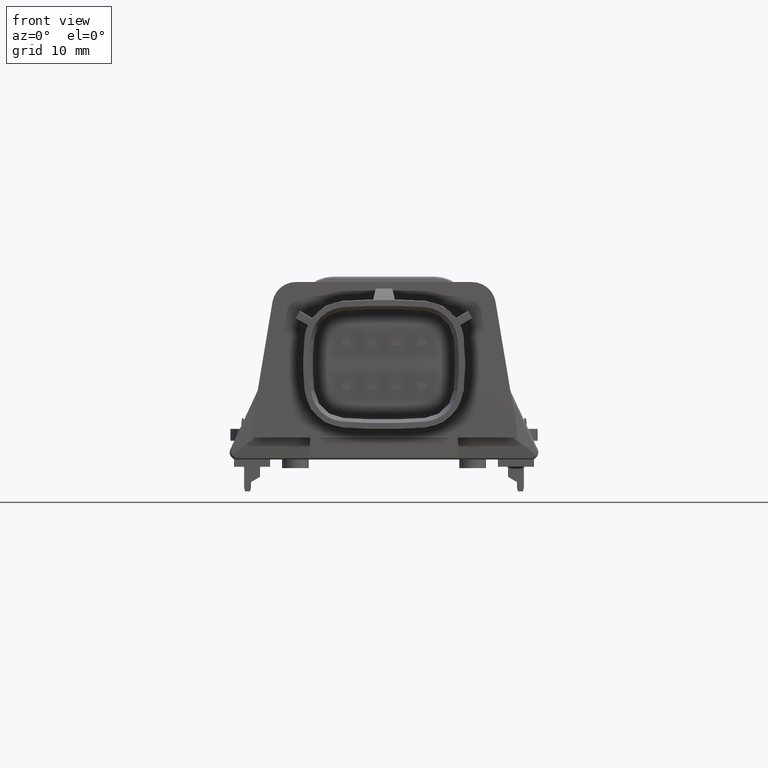
[diagram: clean part render]
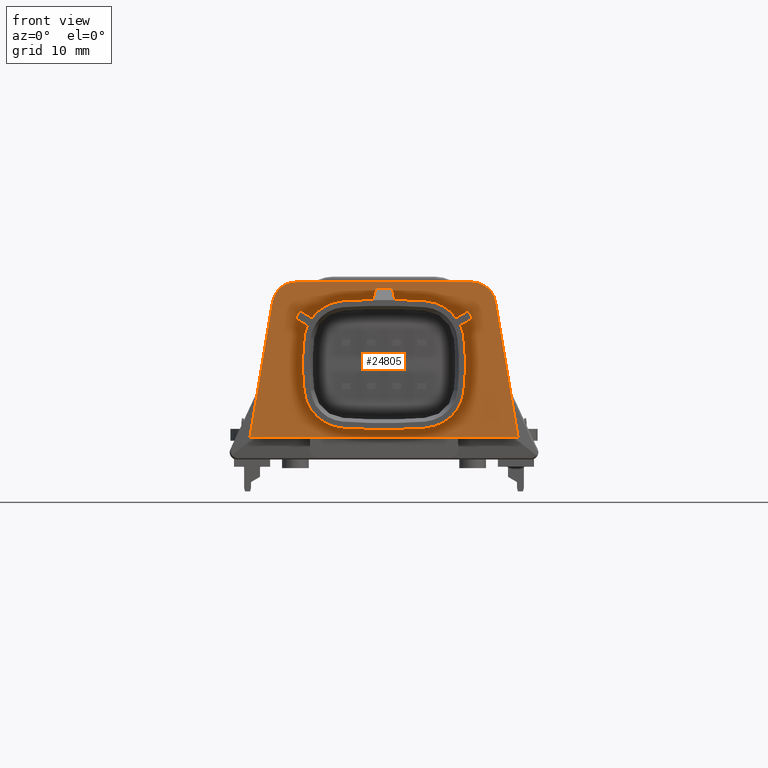
[diagram: same view with one face highlighted and labeled with its STEP entity id]
A machine part, front view. The second image highlights one B-rep face of the part: STEP entity #24805.
In plain terms, the highlighted planar face has unit normal (0, 1, 0).
Its self-contained STEP definition (entity closure, byte-faithful):
#8640 = VERTEX_POINT('',#8641);
#8641 = CARTESIAN_POINT('',(13.22051866713,20.30277740553,11.675));
#8648 = CONICAL_SURFACE('',#8649,5.7167217,4.3633231E-003);
#8649 = AXIS2_PLACEMENT_3D('',#8650,#8651,#8652);
#8650 = CARTESIAN_POINT('',(12.79530848084,14.553302746,22.77999950532)
  );
#8651 = DIRECTION('',(-0.E+000,0.E+000,-1.));
#8652 = DIRECTION('',(-1.,0.E+000,0.E+000));
#8682 = CONICAL_SURFACE('',#8683,77.8204981,4.3633231E-003);
#8683 = AXIS2_PLACEMENT_3D('',#8684,#8685,#8686);
#8684 = CARTESIAN_POINT('',(7.477299736717,-57.35409152467,
    22.77999950532));
#8685 = DIRECTION('',(-0.E+000,0.E+000,-1.));
#8686 = DIRECTION('',(-1.,0.E+000,0.E+000));
#8768 = VERTEX_POINT('',#8769);
#8769 = CARTESIAN_POINT('',(17.45005308274,17.95486345459,11.675));
#8808 = PLANE('',#8809);
#8809 = AXIS2_PLACEMENT_3D('',#8810,#8811,#8812);
#8810 = CARTESIAN_POINT('',(19.15862980087,18.82940863345,33.88499901064
    ));
#8811 = DIRECTION('',(-0.49999524036,0.866017159847,4.363309284747E-003)
  );
#8812 = DIRECTION('',(8.726369367997E-003,5.558653716356E-019,
    0.999961924514));
#8823 = EDGE_CURVE('',#8640,#8768,#8824,.T.);
#8824 = SURFACE_CURVE('',#8825,(#8830,#8859),.PCURVE_S1.);
#8825 = CIRCLE('',#8826,5.7651767);
#8826 = AXIS2_PLACEMENT_3D('',#8827,#8828,#8829);
#8827 = CARTESIAN_POINT('',(12.79530848085,14.55330274601,11.67500000001
    ));
#8828 = DIRECTION('',(0.E+000,0.E+000,-1.));
#8829 = DIRECTION('',(7.375492673846E-002,0.997276396383,0.E+000));
#8830 = PCURVE('',#8648,#8831);
#8831 = DEFINITIONAL_REPRESENTATION('',(#8832),#8858);
#8832 = B_SPLINE_CURVE_WITH_KNOTS('',3,(#8833,#8834,#8835,#8836,#8837,
    #8838,#8839,#8840,#8841,#8842,#8843,#8844,#8845,#8846,#8847,#8848,
    #8849,#8850,#8851,#8852,#8853,#8854,#8855,#8856,#8857),
  .UNSPECIFIED.,.F.,.F.,(4,1,1,1,1,1,1,1,1,1,1,1,1,1,1,1,1,1,1,1,1,1,4),
  (0.E+000,3.935875719803E-002,7.871751439606E-002,0.118076271594,
    0.157435028792,0.19679378599,0.236152543188,0.275511300386,
    0.314870057584,0.354228814782,0.39358757198,0.432946329178,
    0.472305086376,0.511663843574,0.551022600772,0.59038135797,
    0.629740115168,0.669098872367,0.708457629565,0.747816386763,
    0.787175143961,0.826533901159,0.865892658357),
  .QUASI_UNIFORM_KNOTS.);
#8833 = CARTESIAN_POINT('',(1.644618286297,11.104999505274));
#8834 = CARTESIAN_POINT('',(1.65773787203,11.104999505274));
#8835 = CARTESIAN_POINT('',(1.683977043495,11.104999505274));
#8836 = CARTESIAN_POINT('',(1.723335800693,11.104999505274));
#8837 = CARTESIAN_POINT('',(1.762694557891,11.104999505274));
#8838 = CARTESIAN_POINT('',(1.802053315089,11.104999505274));
#8839 = CARTESIAN_POINT('',(1.841412072287,11.104999505274));
#8840 = CARTESIAN_POINT('',(1.880770829485,11.104999505274));
#8841 = CARTESIAN_POINT('',(1.920129586683,11.104999505274));
#8842 = CARTESIAN_POINT('',(1.959488343881,11.104999505274));
#8843 = CARTESIAN_POINT('',(1.998847101079,11.104999505274));
#8844 = CARTESIAN_POINT('',(2.038205858277,11.104999505274));
#8845 = CARTESIAN_POINT('',(2.077564615475,11.104999505274));
#8846 = CARTESIAN_POINT('',(2.116923372673,11.104999505274));
#8847 = CARTESIAN_POINT('',(2.156282129871,11.104999505274));
#8848 = CARTESIAN_POINT('',(2.195640887069,11.104999505274));
#8849 = CARTESIAN_POINT('',(2.234999644266,11.104999505274));
#8850 = CARTESIAN_POINT('',(2.274358401464,11.104999505274));
#8851 = CARTESIAN_POINT('',(2.313717158662,11.104999505274));
#8852 = CARTESIAN_POINT('',(2.35307591586,11.104999505274));
#8853 = CARTESIAN_POINT('',(2.392434673058,11.104999505274));
#8854 = CARTESIAN_POINT('',(2.431793430256,11.104999505274));
#8855 = CARTESIAN_POINT('',(2.471152187454,11.104999505274));
#8856 = CARTESIAN_POINT('',(2.497391358919,11.104999505274));
#8857 = CARTESIAN_POINT('',(2.510510944652,11.104999505274));
#8858 = ( GEOMETRIC_REPRESENTATION_CONTEXT(2) 
PARAMETRIC_REPRESENTATION_CONTEXT() REPRESENTATION_CONTEXT('2D SPACE',''
  ) );
#8859 = PCURVE('',#8860,#8865);
#8860 = PLANE('',#8861);
#8861 = AXIS2_PLACEMENT_3D('',#8862,#8863,#8864);
#8862 = CARTESIAN_POINT('',(36.91875616118,-8.181083939232,11.675));
#8863 = DIRECTION('',(0.E+000,0.E+000,-1.));
#8864 = DIRECTION('',(0.E+000,-1.,0.E+000));
#8865 = DEFINITIONAL_REPRESENTATION('',(#8866),#8870);
#8866 = CIRCLE('',#8867,5.7651767);
#8867 = AXIS2_PLACEMENT_2D('',#8868,#8869);
#8868 = CARTESIAN_POINT('',(-22.73438668524,24.12344768033));
#8869 = DIRECTION('',(-0.997276396383,-7.375492673846E-002));
#8870 = ( GEOMETRIC_REPRESENTATION_CONTEXT(2) 
PARAMETRIC_REPRESENTATION_CONTEXT() REPRESENTATION_CONTEXT('2D SPACE',''
  ) );
#9633 = EDGE_CURVE('',#9634,#8640,#9636,.T.);
#9634 = VERTEX_POINT('',#9635);
#9635 = CARTESIAN_POINT('',(1.734080806298,20.30277740553,11.675));
#9636 = SURFACE_CURVE('',#9637,(#9642,#9671),.PCURVE_S1.);
#9637 = CIRCLE('',#9638,77.8689531);
#9638 = AXIS2_PLACEMENT_3D('',#9639,#9640,#9641);
#9639 = CARTESIAN_POINT('',(7.477299736726,-57.35409152468,
    11.67500000001));
#9640 = DIRECTION('',(0.E+000,0.E+000,-1.));
#9641 = DIRECTION('',(-7.375492673703E-002,0.997276396383,0.E+000));
#9642 = PCURVE('',#8682,#9643);
#9643 = DEFINITIONAL_REPRESENTATION('',(#9644),#9670);
#9644 = B_SPLINE_CURVE_WITH_KNOTS('',3,(#9645,#9646,#9647,#9648,#9649,
    #9650,#9651,#9652,#9653,#9654,#9655,#9656,#9657,#9658,#9659,#9660,
    #9661,#9662,#9663,#9664,#9665,#9666,#9667,#9668,#9669),
  .UNSPECIFIED.,.F.,.F.,(4,1,1,1,1,1,1,1,1,1,1,1,1,1,1,1,1,1,1,1,1,1,4),
  (0.E+000,6.711087227204E-003,1.342217445441E-002,2.013326168161E-002,
    2.684434890882E-002,3.355543613602E-002,4.026652336322E-002,
    4.697761059043E-002,5.368869781763E-002,6.039978504484E-002,
    6.711087227204E-002,7.382195949925E-002,8.053304672645E-002,
    8.724413395365E-002,9.395522118086E-002,0.100666308408,
    0.107377395635,0.114088482862,0.12079957009,0.127510657317,
    0.134221744544,0.140932831771,0.147643918998),
  .QUASI_UNIFORM_KNOTS.);
#9645 = CARTESIAN_POINT('',(1.496974367296,11.104999505273));
#9646 = CARTESIAN_POINT('',(1.499211396371,11.104999505273));
#9647 = CARTESIAN_POINT('',(1.503685454523,11.104999505273));
#9648 = CARTESIAN_POINT('',(1.51039654175,11.104999505273));
#9649 = CARTESIAN_POINT('',(1.517107628977,11.104999505273));
#9650 = CARTESIAN_POINT('',(1.523818716204,11.104999505273));
#9651 = CARTESIAN_POINT('',(1.530529803432,11.104999505273));
#9652 = CARTESIAN_POINT('',(1.537240890659,11.104999505273));
#9653 = CARTESIAN_POINT('',(1.543951977886,11.104999505273));
#9654 = CARTESIAN_POINT('',(1.550663065113,11.104999505273));
#9655 = CARTESIAN_POINT('',(1.55737415234,11.104999505273));
#9656 = CARTESIAN_POINT('',(1.564085239568,11.104999505273));
#9657 = CARTESIAN_POINT('',(1.570796326795,11.104999505273));
#9658 = CARTESIAN_POINT('',(1.577507414022,11.104999505273));
#9659 = CARTESIAN_POINT('',(1.584218501249,11.104999505273));
#9660 = CARTESIAN_POINT('',(1.590929588476,11.104999505273));
#9661 = CARTESIAN_POINT('',(1.597640675704,11.104999505273));
#9662 = CARTESIAN_POINT('',(1.604351762931,11.104999505273));
#9663 = CARTESIAN_POINT('',(1.611062850158,11.104999505273));
#9664 = CARTESIAN_POINT('',(1.617773937385,11.104999505273));
#9665 = CARTESIAN_POINT('',(1.624485024612,11.104999505273));
#9666 = CARTESIAN_POINT('',(1.63119611184,11.104999505273));
#9667 = CARTESIAN_POINT('',(1.637907199067,11.104999505273));
#9668 = CARTESIAN_POINT('',(1.642381257218,11.104999505273));
#9669 = CARTESIAN_POINT('',(1.644618286294,11.104999505273));
#9670 = ( GEOMETRIC_REPRESENTATION_CONTEXT(2) 
PARAMETRIC_REPRESENTATION_CONTEXT() REPRESENTATION_CONTEXT('2D SPACE',''
  ) );
#9671 = PCURVE('',#8860,#9672);
#9672 = DEFINITIONAL_REPRESENTATION('',(#9673),#9677);
#9673 = CIRCLE('',#9674,77.8689531);
#9674 = AXIS2_PLACEMENT_2D('',#9675,#9676);
#9675 = CARTESIAN_POINT('',(49.173007585448,29.441456424454));
#9676 = DIRECTION('',(-0.997276396383,7.375492673703E-002));
#9677 = ( GEOMETRIC_REPRESENTATION_CONTEXT(2) 
PARAMETRIC_REPRESENTATION_CONTEXT() REPRESENTATION_CONTEXT('2D SPACE',''
  ) );
#9717 = CONICAL_SURFACE('',#9718,5.7167217,4.3633231E-003);
#9718 = AXIS2_PLACEMENT_3D('',#9719,#9720,#9721);
#9719 = CARTESIAN_POINT('',(2.159290992589,14.553302746,22.77999950532)
  );
#9720 = DIRECTION('',(-0.E+000,0.E+000,-1.));
#9721 = DIRECTION('',(-1.,0.E+000,0.E+000));
#12497 = PLANE('',#12498);
#12498 = AXIS2_PLACEMENT_3D('',#12499,#12500,#12501);
#12499 = CARTESIAN_POINT('',(-2.020586068538,17.56879650282,
    33.88499901064));
#12500 = DIRECTION('',(0.49999524036,0.866017159847,4.363309284747E-003)
  );
#12501 = DIRECTION('',(8.726369367997E-003,-5.558653716356E-019,
    -0.999961924514));
#12525 = PLANE('',#12526);
#12526 = AXIS2_PLACEMENT_3D('',#12527,#12528,#12529);
#12527 = CARTESIAN_POINT('',(-3.818048248573,19.49794920485,
    11.33078194883));
#12528 = DIRECTION('',(0.866025403784,-0.5,0.E+000));
#12529 = DIRECTION('',(0.E+000,0.E+000,-1.));
#12553 = PLANE('',#12554);
#12554 = AXIS2_PLACEMENT_3D('',#12555,#12556,#12557);
#12555 = CARTESIAN_POINT('',(-4.729030327433,17.92008195948,
    33.88499901064));
#12556 = DIRECTION('',(-0.49999524036,-0.866017159847,
    4.363309284747E-003));
#12557 = DIRECTION('',(-0.866025403784,0.5,2.336646264119E-018));
#12582 = CONICAL_SURFACE('',#12583,5.7167217,4.3633231E-003);
#12583 = AXIS2_PLACEMENT_3D('',#12584,#12585,#12586);
#12584 = CARTESIAN_POINT('',(2.159290992589,14.553302746,22.77999950532)
  );
#12585 = DIRECTION('',(-0.E+000,0.E+000,-1.));
#12586 = DIRECTION('',(-1.,0.E+000,0.E+000));
#12633 = CONICAL_SURFACE('',#12634,31.7238787,4.3633231E-003);
#12634 = AXIS2_PLACEMENT_3D('',#12635,#12636,#12637);
#12635 = CARTESIAN_POINT('',(27.98683771858,11.50206580454,
    22.77999950532));
#12636 = DIRECTION('',(-0.E+000,0.E+000,-1.));
#12637 = DIRECTION('',(-1.,0.E+000,0.E+000));
#12684 = CONICAL_SURFACE('',#12685,5.7167217,4.3633231E-003);
#12685 = AXIS2_PLACEMENT_3D('',#12686,#12687,#12688);
#12686 = CARTESIAN_POINT('',(2.159290992589,8.450828863081,
    22.77999950532));
#12687 = DIRECTION('',(-0.E+000,0.E+000,-1.));
#12688 = DIRECTION('',(-1.,0.E+000,0.E+000));
#12735 = CONICAL_SURFACE('',#12736,77.8204981,4.3633231E-003);
#12736 = AXIS2_PLACEMENT_3D('',#12737,#12738,#12739);
#12737 = CARTESIAN_POINT('',(7.477299736717,80.35822313373,
    22.77999950532));
#12738 = DIRECTION('',(-0.E+000,0.E+000,-1.));
#12739 = DIRECTION('',(-1.,0.E+000,0.E+000));
#12786 = CONICAL_SURFACE('',#12787,5.7167217,4.3633231E-003);
#12787 = AXIS2_PLACEMENT_3D('',#12788,#12789,#12790);
#12788 = CARTESIAN_POINT('',(12.79530848084,8.450828863081,
    22.77999950532));
#12789 = DIRECTION('',(-0.E+000,0.E+000,-1.));
#12790 = DIRECTION('',(-1.,0.E+000,0.E+000));
#12837 = CONICAL_SURFACE('',#12838,31.7238787,4.3633231E-003);
#12838 = AXIS2_PLACEMENT_3D('',#12839,#12840,#12841);
#12839 = CARTESIAN_POINT('',(-13.03223824514,11.50206580454,
    22.77999950532));
#12840 = DIRECTION('',(-0.E+000,0.E+000,-1.));
#12841 = DIRECTION('',(-1.,0.E+000,0.E+000));
#12888 = CONICAL_SURFACE('',#12889,5.7167217,4.3633231E-003);
#12889 = AXIS2_PLACEMENT_3D('',#12890,#12891,#12892);
#12890 = CARTESIAN_POINT('',(12.79530848084,14.553302746,22.77999950532)
  );
#12891 = DIRECTION('',(-0.E+000,0.E+000,-1.));
#12892 = DIRECTION('',(-1.,0.E+000,0.E+000));
#12938 = PLANE('',#12939);
#12939 = AXIS2_PLACEMENT_3D('',#12940,#12941,#12942);
#12940 = CARTESIAN_POINT('',(17.49088762765,16.65410167551,
    33.88499901064));
#12941 = DIRECTION('',(0.49999524036,-0.866017159847,4.363309284747E-003
    ));
#12942 = DIRECTION('',(-2.42230247091E-018,-5.03829959332E-003,
    -0.999987307688));
#12966 = PLANE('',#12967);
#12967 = AXIS2_PLACEMENT_3D('',#12968,#12969,#12970);
#12968 = CARTESIAN_POINT('',(20.06229170071,17.26422031005,
    11.33078194883));
#12969 = DIRECTION('',(-0.866025403784,-0.5,0.E+000));
#12970 = DIRECTION('',(-0.5,0.866025403784,0.E+000));
#16806 = VERTEX_POINT('',#16807);
#16807 = CARTESIAN_POINT('',(-7.951273056982,20.14236165811,11.675));
#16814 = PLANE('',#16815);
#16815 = AXIS2_PLACEMENT_3D('',#16816,#16817,#16818);
#16816 = CARTESIAN_POINT('',(-7.5,22.85,11.275));
#16817 = DIRECTION('',(-0.986393923832,0.164398987305,0.E+000));
#16818 = DIRECTION('',(0.E+000,0.E+000,1.));
#16826 = CYLINDRICAL_SURFACE('',#16827,3.3);
#16827 = AXIS2_PLACEMENT_3D('',#16828,#16829,#16830);
#16828 = CARTESIAN_POINT('',(-4.696173108336,19.599845,11.275));
#16829 = DIRECTION('',(-0.E+000,-0.E+000,1.));
#16830 = DIRECTION('',(-1.,0.E+000,0.E+000));
#16861 = VERTEX_POINT('',#16862);
#16862 = CARTESIAN_POINT('',(-11.07502583333,1.399845,11.675));
#16876 = PLANE('',#16877);
#16877 = AXIS2_PLACEMENT_3D('',#16878,#16879,#16880);
#16878 = CARTESIAN_POINT('',(-21.14700985886,1.399845,3.822859505281));
#16879 = DIRECTION('',(0.E+000,1.,0.E+000));
#16880 = DIRECTION('',(1.,0.E+000,-0.E+000));
#16888 = EDGE_CURVE('',#16806,#16861,#16889,.T.);
#16889 = SURFACE_CURVE('',#16890,(#16894,#16901),.PCURVE_S1.);
#16890 = LINE('',#16891,#16892);
#16891 = CARTESIAN_POINT('',(-7.951273056992,20.14236165812,
    11.67500000001));
#16892 = VECTOR('',#16893,1.);
#16893 = DIRECTION('',(-0.164398987306,-0.986393923832,0.E+000));
#16894 = PCURVE('',#16814,#16895);
#16895 = DEFINITIONAL_REPRESENTATION('',(#16896),#16900);
#16896 = LINE('',#16897,#16898);
#16897 = CARTESIAN_POINT('',(0.40000000001,-2.744986841933));
#16898 = VECTOR('',#16899,1.);
#16899 = DIRECTION('',(0.E+000,-1.));
#16900 = ( GEOMETRIC_REPRESENTATION_CONTEXT(2) 
PARAMETRIC_REPRESENTATION_CONTEXT() REPRESENTATION_CONTEXT('2D SPACE',''
  ) );
#16901 = PCURVE('',#8860,#16902);
#16902 = DEFINITIONAL_REPRESENTATION('',(#16903),#16907);
#16903 = LINE('',#16904,#16905);
#16904 = CARTESIAN_POINT('',(-28.32344559735,44.870029218172));
#16905 = VECTOR('',#16906,1.);
#16906 = DIRECTION('',(0.986393923832,0.164398987306));
#16907 = ( GEOMETRIC_REPRESENTATION_CONTEXT(2) 
PARAMETRIC_REPRESENTATION_CONTEXT() REPRESENTATION_CONTEXT('2D SPACE',''
  ) );
#17276 = PLANE('',#17277);
#17277 = AXIS2_PLACEMENT_3D('',#17278,#17279,#17280);
#17278 = CARTESIAN_POINT('',(16.556696,22.899845,11.275));
#17279 = DIRECTION('',(0.E+000,1.,0.E+000));
#17280 = DIRECTION('',(1.,0.E+000,-0.E+000));
#17316 = CYLINDRICAL_SURFACE('',#17317,3.3);
#17317 = AXIS2_PLACEMENT_3D('',#17318,#17319,#17320);
#17318 = CARTESIAN_POINT('',(19.65089437694,19.599845,11.275));
#17319 = DIRECTION('',(-0.E+000,-0.E+000,1.));
#17320 = DIRECTION('',(1.,0.E+000,0.E+000));
#17366 = PLANE('',#17367);
#17367 = AXIS2_PLACEMENT_3D('',#17368,#17369,#17370);
#17368 = CARTESIAN_POINT('',(22.4547212686,22.85,11.275));
#17369 = DIRECTION('',(-0.986393923832,-0.164398987305,0.E+000));
#17370 = DIRECTION('',(-0.164398987305,0.986393923832,0.E+000));
#23539 = VERTEX_POINT('',#23540);
#23540 = CARTESIAN_POINT('',(1.734080806298,2.70135420355,11.675));
#23607 = VERTEX_POINT('',#23608);
#23608 = CARTESIAN_POINT('',(-3.566070331575,7.774441199908,11.675));
#23673 = EDGE_CURVE('',#23539,#23607,#23674,.T.);
#23674 = SURFACE_CURVE('',#23675,(#23680,#23709),.PCURVE_S1.);
#23675 = CIRCLE('',#23676,5.7651767);
#23676 = AXIS2_PLACEMENT_3D('',#23677,#23678,#23679);
#23677 = CARTESIAN_POINT('',(2.159290992599,8.450828863091,
    11.67500000001));
#23678 = DIRECTION('',(-0.E+000,0.E+000,-1.));
#23679 = DIRECTION('',(-7.37549267387E-002,-0.997276396383,0.E+000));
#23680 = PCURVE('',#12684,#23681);
#23681 = DEFINITIONAL_REPRESENTATION('',(#23682),#23708);
#23682 = B_SPLINE_CURVE_WITH_KNOTS('',3,(#23683,#23684,#23685,#23686,
    #23687,#23688,#23689,#23690,#23691,#23692,#23693,#23694,#23695,
    #23696,#23697,#23698,#23699,#23700,#23701,#23702,#23703,#23704,
    #23705,#23706,#23707),.UNSPECIFIED.,.F.,.F.,(4,1,1,1,1,1,1,1,1,1,1,1
    ,1,1,1,1,1,1,1,1,1,1,4),(0.E+000,6.269911648721E-002,0.125398232974,
    0.188097349462,0.250796465949,0.313495582436,0.376194698923,
    0.43889381541,0.501592931898,0.564292048385,0.626991164872,
    0.689690281359,0.752389397847,0.815088514334,0.877787630821,
    0.940486747308,1.003185863795,1.065884980283,1.12858409677,
    1.191283213257,1.253982329744,1.316681446231,1.379380562719),
  .QUASI_UNIFORM_KNOTS.);
#23683 = CARTESIAN_POINT('',(4.786210939884,11.104999505273));
#23684 = CARTESIAN_POINT('',(4.80711064538,11.104999505273));
#23685 = CARTESIAN_POINT('',(4.848910056371,11.104999505273));
#23686 = CARTESIAN_POINT('',(4.911609172859,11.104999505273));
#23687 = CARTESIAN_POINT('',(4.974308289346,11.104999505273));
#23688 = CARTESIAN_POINT('',(5.037007405834,11.104999505273));
#23689 = CARTESIAN_POINT('',(5.099706522321,11.104999505273));
#23690 = CARTESIAN_POINT('',(5.162405638808,11.104999505273));
#23691 = CARTESIAN_POINT('',(5.225104755296,11.104999505273));
#23692 = CARTESIAN_POINT('',(5.287803871783,11.104999505273));
#23693 = CARTESIAN_POINT('',(5.35050298827,11.104999505273));
#23694 = CARTESIAN_POINT('',(5.413202104758,11.104999505273));
#23695 = CARTESIAN_POINT('',(5.475901221245,11.104999505273));
#23696 = CARTESIAN_POINT('',(5.538600337732,11.104999505273));
#23697 = CARTESIAN_POINT('',(5.60129945422,11.104999505273));
#23698 = CARTESIAN_POINT('',(5.663998570707,11.104999505273));
#23699 = CARTESIAN_POINT('',(5.726697687194,11.104999505273));
#23700 = CARTESIAN_POINT('',(5.789396803682,11.104999505273));
#23701 = CARTESIAN_POINT('',(5.852095920169,11.104999505273));
#23702 = CARTESIAN_POINT('',(5.914795036657,11.104999505273));
#23703 = CARTESIAN_POINT('',(5.977494153144,11.104999505273));
#23704 = CARTESIAN_POINT('',(6.040193269631,11.104999505273));
#23705 = CARTESIAN_POINT('',(6.102892386119,11.104999505273));
#23706 = CARTESIAN_POINT('',(6.14469179711,11.104999505273));
#23707 = CARTESIAN_POINT('',(6.165591502606,11.104999505273));
#23708 = ( GEOMETRIC_REPRESENTATION_CONTEXT(2) 
PARAMETRIC_REPRESENTATION_CONTEXT() REPRESENTATION_CONTEXT('2D SPACE',''
  ) );
#23709 = PCURVE('',#8860,#23710);
#23710 = DEFINITIONAL_REPRESENTATION('',(#23711),#23715);
#23711 = CIRCLE('',#23712,5.7651767);
#23712 = AXIS2_PLACEMENT_2D('',#23713,#23714);
#23713 = CARTESIAN_POINT('',(-16.63191280232,34.759465168581));
#23714 = DIRECTION('',(0.997276396383,7.37549267387E-002));
#23715 = ( GEOMETRIC_REPRESENTATION_CONTEXT(2) 
PARAMETRIC_REPRESENTATION_CONTEXT() REPRESENTATION_CONTEXT('2D SPACE',''
  ) );
#23723 = VERTEX_POINT('',#23724);
#23724 = CARTESIAN_POINT('',(-3.566070331575,15.22969040917,11.675));
#23789 = EDGE_CURVE('',#23607,#23723,#23790,.T.);
#23790 = SURFACE_CURVE('',#23791,(#23796,#23825),.PCURVE_S1.);
#23791 = CIRCLE('',#23792,31.7723337);
#23792 = AXIS2_PLACEMENT_3D('',#23793,#23794,#23795);
#23793 = CARTESIAN_POINT('',(27.98683771859,11.50206580455,
    11.67500000001));
#23794 = DIRECTION('',(-0.E+000,0.E+000,-1.));
#23795 = DIRECTION('',(-0.993093812473,-0.117322971442,0.E+000));
#23796 = PCURVE('',#12633,#23797);
#23797 = DEFINITIONAL_REPRESENTATION('',(#23798),#23824);
#23798 = B_SPLINE_CURVE_WITH_KNOTS('',3,(#23799,#23800,#23801,#23802,
    #23803,#23804,#23805,#23806,#23807,#23808,#23809,#23810,#23811,
    #23812,#23813,#23814,#23815,#23816,#23817,#23818,#23819,#23820,
    #23821,#23822,#23823),.UNSPECIFIED.,.F.,.F.,(4,1,1,1,1,1,1,1,1,1,1,1
    ,1,1,1,1,1,1,1,1,1,1,4),(0.E+000,1.069034587033E-002,
    2.138069174066E-002,3.207103761099E-002,4.276138348132E-002,
    5.345172935165E-002,6.414207522197E-002,7.48324210923E-002,
    8.552276696263E-002,9.621311283296E-002,0.106903458703,
    0.117593804574,0.128284150444,0.138974496314,0.149664842185,
    0.160355188055,0.171045533925,0.181735879796,0.192426225666,
    0.203116571536,0.213806917407,0.224497263277,0.235187609147),
  .QUASI_UNIFORM_KNOTS.);
#23799 = CARTESIAN_POINT('',(-0.117593804574,11.104999505273));
#23800 = CARTESIAN_POINT('',(-0.11403035595,11.104999505273));
#23801 = CARTESIAN_POINT('',(-0.106903458703,11.104999505273));
#23802 = CARTESIAN_POINT('',(-9.6213112833E-002,11.104999505273));
#23803 = CARTESIAN_POINT('',(-8.552276696267E-002,11.104999505273));
#23804 = CARTESIAN_POINT('',(-7.483242109234E-002,11.104999505273));
#23805 = CARTESIAN_POINT('',(-6.4142075222E-002,11.104999505273));
#23806 = CARTESIAN_POINT('',(-5.345172935167E-002,11.104999505273));
#23807 = CARTESIAN_POINT('',(-4.276138348134E-002,11.104999505273));
#23808 = CARTESIAN_POINT('',(-3.2071037611E-002,11.104999505273));
#23809 = CARTESIAN_POINT('',(-2.138069174067E-002,11.104999505273));
#23810 = CARTESIAN_POINT('',(-1.069034587034E-002,11.104999505273));
#23811 = CARTESIAN_POINT('',(-7.993605777301E-015,11.104999505273));
#23812 = CARTESIAN_POINT('',(1.069034587033E-002,11.104999505273));
#23813 = CARTESIAN_POINT('',(2.138069174066E-002,11.104999505273));
#23814 = CARTESIAN_POINT('',(3.207103761099E-002,11.104999505273));
#23815 = CARTESIAN_POINT('',(4.276138348132E-002,11.104999505273));
#23816 = CARTESIAN_POINT('',(5.345172935166E-002,11.104999505273));
#23817 = CARTESIAN_POINT('',(6.414207522199E-002,11.104999505273));
#23818 = CARTESIAN_POINT('',(7.483242109232E-002,11.104999505273));
#23819 = CARTESIAN_POINT('',(8.552276696265E-002,11.104999505273));
#23820 = CARTESIAN_POINT('',(9.621311283298E-002,11.104999505273));
#23821 = CARTESIAN_POINT('',(0.106903458703,11.104999505273));
#23822 = CARTESIAN_POINT('',(0.11403035595,11.104999505273));
#23823 = CARTESIAN_POINT('',(0.117593804574,11.104999505273));
#23824 = ( GEOMETRIC_REPRESENTATION_CONTEXT(2) 
PARAMETRIC_REPRESENTATION_CONTEXT() REPRESENTATION_CONTEXT('2D SPACE',''
  ) );
#23825 = PCURVE('',#8860,#23826);
#23826 = DEFINITIONAL_REPRESENTATION('',(#23827),#23831);
#23827 = CIRCLE('',#23828,31.7723337);
#23828 = AXIS2_PLACEMENT_2D('',#23829,#23830);
#23829 = CARTESIAN_POINT('',(-19.68314974378,8.93191844259));
#23830 = DIRECTION('',(0.117322971442,0.993093812473));
#23831 = ( GEOMETRIC_REPRESENTATION_CONTEXT(2) 
PARAMETRIC_REPRESENTATION_CONTEXT() REPRESENTATION_CONTEXT('2D SPACE',''
  ) );
#23837 = VERTEX_POINT('',#23838);
#23838 = CARTESIAN_POINT('',(13.22051866714,2.701354203549,11.675));
#23905 = EDGE_CURVE('',#23837,#23539,#23906,.T.);
#23906 = SURFACE_CURVE('',#23907,(#23912,#23941),.PCURVE_S1.);
#23907 = CIRCLE('',#23908,77.8689531);
#23908 = AXIS2_PLACEMENT_3D('',#23909,#23910,#23911);
#23909 = CARTESIAN_POINT('',(7.477299736727,80.35822313374,
    11.67500000001));
#23910 = DIRECTION('',(0.E+000,-0.E+000,-1.));
#23911 = DIRECTION('',(7.375492673706E-002,-0.997276396383,0.E+000));
#23912 = PCURVE('',#12735,#23913);
#23913 = DEFINITIONAL_REPRESENTATION('',(#23914),#23940);
#23914 = B_SPLINE_CURVE_WITH_KNOTS('',3,(#23915,#23916,#23917,#23918,
    #23919,#23920,#23921,#23922,#23923,#23924,#23925,#23926,#23927,
    #23928,#23929,#23930,#23931,#23932,#23933,#23934,#23935,#23936,
    #23937,#23938,#23939),.UNSPECIFIED.,.F.,.F.,(4,1,1,1,1,1,1,1,1,1,1,1
    ,1,1,1,1,1,1,1,1,1,1,4),(0.E+000,6.711087227221E-003,
    1.342217445444E-002,2.013326168166E-002,2.684434890888E-002,
    3.35554361361E-002,4.026652336333E-002,4.697761059055E-002,
    5.368869781777E-002,6.039978504499E-002,6.711087227221E-002,
    7.382195949943E-002,8.053304672665E-002,8.724413395387E-002,
    9.395522118109E-002,0.100666308408,0.107377395636,0.114088482863,
    0.12079957009,0.127510657317,0.134221744544,0.140932831772,
    0.147643918999),.QUASI_UNIFORM_KNOTS.);
#23915 = CARTESIAN_POINT('',(4.638567020885,11.104999505273));
#23916 = CARTESIAN_POINT('',(4.640804049961,11.104999505273));
#23917 = CARTESIAN_POINT('',(4.645278108112,11.104999505273));
#23918 = CARTESIAN_POINT('',(4.65198919534,11.104999505273));
#23919 = CARTESIAN_POINT('',(4.658700282567,11.104999505273));
#23920 = CARTESIAN_POINT('',(4.665411369794,11.104999505273));
#23921 = CARTESIAN_POINT('',(4.672122457021,11.104999505273));
#23922 = CARTESIAN_POINT('',(4.678833544248,11.104999505273));
#23923 = CARTESIAN_POINT('',(4.685544631476,11.104999505273));
#23924 = CARTESIAN_POINT('',(4.692255718703,11.104999505273));
#23925 = CARTESIAN_POINT('',(4.69896680593,11.104999505273));
#23926 = CARTESIAN_POINT('',(4.705677893157,11.104999505273));
#23927 = CARTESIAN_POINT('',(4.712388980385,11.104999505273));
#23928 = CARTESIAN_POINT('',(4.719100067612,11.104999505273));
#23929 = CARTESIAN_POINT('',(4.725811154839,11.104999505273));
#23930 = CARTESIAN_POINT('',(4.732522242066,11.104999505273));
#23931 = CARTESIAN_POINT('',(4.739233329293,11.104999505273));
#23932 = CARTESIAN_POINT('',(4.745944416521,11.104999505273));
#23933 = CARTESIAN_POINT('',(4.752655503748,11.104999505273));
#23934 = CARTESIAN_POINT('',(4.759366590975,11.104999505273));
#23935 = CARTESIAN_POINT('',(4.766077678202,11.104999505273));
#23936 = CARTESIAN_POINT('',(4.77278876543,11.104999505273));
#23937 = CARTESIAN_POINT('',(4.779499852657,11.104999505273));
#23938 = CARTESIAN_POINT('',(4.783973910808,11.104999505273));
#23939 = CARTESIAN_POINT('',(4.786210939884,11.104999505273));
#23940 = ( GEOMETRIC_REPRESENTATION_CONTEXT(2) 
PARAMETRIC_REPRESENTATION_CONTEXT() REPRESENTATION_CONTEXT('2D SPACE',''
  ) );
#23941 = PCURVE('',#8860,#23942);
#23942 = DEFINITIONAL_REPRESENTATION('',(#23943),#23947);
#23943 = CIRCLE('',#23944,77.8689531);
#23944 = AXIS2_PLACEMENT_2D('',#23945,#23946);
#23945 = CARTESIAN_POINT('',(-88.53930707297,29.441456424453));
#23946 = DIRECTION('',(0.997276396383,-7.375492673706E-002));
#23947 = ( GEOMETRIC_REPRESENTATION_CONTEXT(2) 
PARAMETRIC_REPRESENTATION_CONTEXT() REPRESENTATION_CONTEXT('2D SPACE',''
  ) );
#23953 = VERTEX_POINT('',#23954);
#23954 = CARTESIAN_POINT('',(18.52066980501,7.774441199908,11.675));
#24021 = EDGE_CURVE('',#23953,#23837,#24022,.T.);
#24022 = SURFACE_CURVE('',#24023,(#24028,#24057),.PCURVE_S1.);
#24023 = CIRCLE('',#24024,5.7651767);
#24024 = AXIS2_PLACEMENT_3D('',#24025,#24026,#24027);
#24025 = CARTESIAN_POINT('',(12.79530848085,8.450828863091,
    11.67500000001));
#24026 = DIRECTION('',(0.E+000,-0.E+000,-1.));
#24027 = DIRECTION('',(0.993093812473,-0.117322971444,0.E+000));
#24028 = PCURVE('',#12786,#24029);
#24029 = DEFINITIONAL_REPRESENTATION('',(#24030),#24056);
#24030 = B_SPLINE_CURVE_WITH_KNOTS('',3,(#24031,#24032,#24033,#24034,
    #24035,#24036,#24037,#24038,#24039,#24040,#24041,#24042,#24043,
    #24044,#24045,#24046,#24047,#24048,#24049,#24050,#24051,#24052,
    #24053,#24054,#24055),.UNSPECIFIED.,.F.,.F.,(4,1,1,1,1,1,1,1,1,1,1,1
    ,1,1,1,1,1,1,1,1,1,1,4),(0.E+000,6.269911648731E-002,0.125398232975,
    0.188097349462,0.250796465949,0.313495582437,0.376194698924,
    0.438893815411,0.501592931898,0.564292048386,0.626991164873,
    0.68969028136,0.752389397848,0.815088514335,0.877787630822,
    0.94048674731,1.003185863797,1.065884980284,1.128584096772,
    1.191283213259,1.253982329746,1.316681446233,1.379380562721),
  .QUASI_UNIFORM_KNOTS.);
#24031 = CARTESIAN_POINT('',(3.259186458163,11.104999505274));
#24032 = CARTESIAN_POINT('',(3.280086163659,11.104999505274));
#24033 = CARTESIAN_POINT('',(3.32188557465,11.104999505274));
#24034 = CARTESIAN_POINT('',(3.384584691137,11.104999505274));
#24035 = CARTESIAN_POINT('',(3.447283807625,11.104999505273));
#24036 = CARTESIAN_POINT('',(3.509982924112,11.104999505273));
#24037 = CARTESIAN_POINT('',(3.572682040599,11.104999505273));
#24038 = CARTESIAN_POINT('',(3.635381157086,11.104999505273));
#24039 = CARTESIAN_POINT('',(3.698080273574,11.104999505273));
#24040 = CARTESIAN_POINT('',(3.760779390061,11.104999505273));
#24041 = CARTESIAN_POINT('',(3.823478506548,11.104999505273));
#24042 = CARTESIAN_POINT('',(3.886177623036,11.104999505273));
#24043 = CARTESIAN_POINT('',(3.948876739523,11.104999505273));
#24044 = CARTESIAN_POINT('',(4.01157585601,11.104999505273));
#24045 = CARTESIAN_POINT('',(4.074274972498,11.104999505273));
#24046 = CARTESIAN_POINT('',(4.136974088985,11.104999505273));
#24047 = CARTESIAN_POINT('',(4.199673205472,11.104999505273));
#24048 = CARTESIAN_POINT('',(4.26237232196,11.104999505273));
#24049 = CARTESIAN_POINT('',(4.325071438447,11.104999505273));
#24050 = CARTESIAN_POINT('',(4.387770554934,11.104999505273));
#24051 = CARTESIAN_POINT('',(4.450469671422,11.104999505273));
#24052 = CARTESIAN_POINT('',(4.513168787909,11.104999505273));
#24053 = CARTESIAN_POINT('',(4.575867904396,11.104999505273));
#24054 = CARTESIAN_POINT('',(4.617667315388,11.104999505273));
#24055 = CARTESIAN_POINT('',(4.638567020884,11.104999505273));
#24056 = ( GEOMETRIC_REPRESENTATION_CONTEXT(2) 
PARAMETRIC_REPRESENTATION_CONTEXT() REPRESENTATION_CONTEXT('2D SPACE',''
  ) );
#24057 = PCURVE('',#8860,#24058);
#24058 = DEFINITIONAL_REPRESENTATION('',(#24059),#24063);
#24059 = CIRCLE('',#24060,5.7651767);
#24060 = AXIS2_PLACEMENT_2D('',#24061,#24062);
#24061 = CARTESIAN_POINT('',(-16.63191280232,24.12344768033));
#24062 = DIRECTION('',(0.117322971444,-0.993093812473));
#24063 = ( GEOMETRIC_REPRESENTATION_CONTEXT(2) 
PARAMETRIC_REPRESENTATION_CONTEXT() REPRESENTATION_CONTEXT('2D SPACE',''
  ) );
#24068 = EDGE_CURVE('',#24069,#23953,#24071,.T.);
#24069 = VERTEX_POINT('',#24070);
#24070 = CARTESIAN_POINT('',(18.52066980501,15.22969040917,11.675));
#24071 = SURFACE_CURVE('',#24072,(#24077,#24106),.PCURVE_S1.);
#24072 = CIRCLE('',#24073,31.7723337);
#24073 = AXIS2_PLACEMENT_3D('',#24074,#24075,#24076);
#24074 = CARTESIAN_POINT('',(-13.03223824515,11.50206580455,
    11.67500000001));
#24075 = DIRECTION('',(0.E+000,0.E+000,-1.));
#24076 = DIRECTION('',(0.993093812473,0.117322971442,0.E+000));
#24077 = PCURVE('',#12837,#24078);
#24078 = DEFINITIONAL_REPRESENTATION('',(#24079),#24105);
#24079 = B_SPLINE_CURVE_WITH_KNOTS('',3,(#24080,#24081,#24082,#24083,
    #24084,#24085,#24086,#24087,#24088,#24089,#24090,#24091,#24092,
    #24093,#24094,#24095,#24096,#24097,#24098,#24099,#24100,#24101,
    #24102,#24103,#24104),.UNSPECIFIED.,.F.,.F.,(4,1,1,1,1,1,1,1,1,1,1,1
    ,1,1,1,1,1,1,1,1,1,1,4),(0.E+000,1.069034587036E-002,
    2.138069174072E-002,3.207103761108E-002,4.276138348144E-002,
    5.345172935181E-002,6.414207522217E-002,7.483242109253E-002,
    8.552276696289E-002,9.621311283325E-002,0.106903458704,
    0.117593804574,0.128284150444,0.138974496315,0.149664842185,
    0.160355188055,0.171045533926,0.181735879796,0.192426225667,
    0.203116571537,0.213806917407,0.224497263278,0.235187609148),
  .QUASI_UNIFORM_KNOTS.);
#24080 = CARTESIAN_POINT('',(3.023998849016,11.104999505273));
#24081 = CARTESIAN_POINT('',(3.027562297639,11.104999505273));
#24082 = CARTESIAN_POINT('',(3.034689194886,11.104999505273));
#24083 = CARTESIAN_POINT('',(3.045379540756,11.104999505273));
#24084 = CARTESIAN_POINT('',(3.056069886627,11.104999505273));
#24085 = CARTESIAN_POINT('',(3.066760232497,11.104999505273));
#24086 = CARTESIAN_POINT('',(3.077450578367,11.104999505273));
#24087 = CARTESIAN_POINT('',(3.088140924238,11.104999505273));
#24088 = CARTESIAN_POINT('',(3.098831270108,11.104999505273));
#24089 = CARTESIAN_POINT('',(3.109521615978,11.104999505273));
#24090 = CARTESIAN_POINT('',(3.120211961849,11.104999505273));
#24091 = CARTESIAN_POINT('',(3.130902307719,11.104999505273));
#24092 = CARTESIAN_POINT('',(3.14159265359,11.104999505273));
#24093 = CARTESIAN_POINT('',(3.15228299946,11.104999505273));
#24094 = CARTESIAN_POINT('',(3.16297334533,11.104999505273));
#24095 = CARTESIAN_POINT('',(3.173663691201,11.104999505273));
#24096 = CARTESIAN_POINT('',(3.184354037071,11.104999505273));
#24097 = CARTESIAN_POINT('',(3.195044382941,11.104999505273));
#24098 = CARTESIAN_POINT('',(3.205734728812,11.104999505273));
#24099 = CARTESIAN_POINT('',(3.216425074682,11.104999505273));
#24100 = CARTESIAN_POINT('',(3.227115420552,11.104999505273));
#24101 = CARTESIAN_POINT('',(3.237805766423,11.104999505273));
#24102 = CARTESIAN_POINT('',(3.248496112293,11.104999505273));
#24103 = CARTESIAN_POINT('',(3.25562300954,11.104999505273));
#24104 = CARTESIAN_POINT('',(3.259186458164,11.104999505273));
#24105 = ( GEOMETRIC_REPRESENTATION_CONTEXT(2) 
PARAMETRIC_REPRESENTATION_CONTEXT() REPRESENTATION_CONTEXT('2D SPACE',''
  ) );
#24106 = PCURVE('',#8860,#24107);
#24107 = DEFINITIONAL_REPRESENTATION('',(#24108),#24112);
#24108 = CIRCLE('',#24109,31.7723337);
#24109 = AXIS2_PLACEMENT_2D('',#24110,#24111);
#24110 = CARTESIAN_POINT('',(-19.68314974378,49.95099440633));
#24111 = DIRECTION('',(-0.117322971442,-0.993093812473));
#24112 = ( GEOMETRIC_REPRESENTATION_CONTEXT(2) 
PARAMETRIC_REPRESENTATION_CONTEXT() REPRESENTATION_CONTEXT('2D SPACE',''
  ) );
#24805 = ADVANCED_FACE('',(#24806,#24930),#8860,.F.);
#24806 = FACE_BOUND('',#24807,.T.);
#24807 = EDGE_LOOP('',(#24808,#24833,#24860,#24883,#24908,#24909));
#24808 = ORIENTED_EDGE('',*,*,#24809,.T.);
#24809 = EDGE_CURVE('',#24810,#24812,#24814,.T.);
#24810 = VERTEX_POINT('',#24811);
#24811 = CARTESIAN_POINT('',(26.02974710193,1.399845,11.675));
#24812 = VERTEX_POINT('',#24813);
#24813 = CARTESIAN_POINT('',(22.90599432558,20.14236165811,11.675));
#24814 = SURFACE_CURVE('',#24815,(#24819,#24826),.PCURVE_S1.);
#24815 = LINE('',#24816,#24817);
#24816 = CARTESIAN_POINT('',(26.02974710194,1.39984500001,11.67500000001
    ));
#24817 = VECTOR('',#24818,1.);
#24818 = DIRECTION('',(-0.164398987306,0.986393923832,0.E+000));
#24819 = PCURVE('',#8860,#24820);
#24820 = DEFINITIONAL_REPRESENTATION('',(#24821),#24825);
#24821 = LINE('',#24822,#24823);
#24822 = CARTESIAN_POINT('',(-9.580928939242,10.88900905924));
#24823 = VECTOR('',#24824,1.);
#24824 = DIRECTION('',(-0.986393923832,0.164398987306));
#24825 = ( GEOMETRIC_REPRESENTATION_CONTEXT(2) 
PARAMETRIC_REPRESENTATION_CONTEXT() REPRESENTATION_CONTEXT('2D SPACE',''
  ) );
#24826 = PCURVE('',#17366,#24827);
#24827 = DEFINITIONAL_REPRESENTATION('',(#24828),#24832);
#24828 = LINE('',#24829,#24830);
#24829 = CARTESIAN_POINT('',(-21.74603318383,-0.40000000001));
#24830 = VECTOR('',#24831,1.);
#24831 = DIRECTION('',(1.,0.E+000));
#24832 = ( GEOMETRIC_REPRESENTATION_CONTEXT(2) 
PARAMETRIC_REPRESENTATION_CONTEXT() REPRESENTATION_CONTEXT('2D SPACE',''
  ) );
#24833 = ORIENTED_EDGE('',*,*,#24834,.T.);
#24834 = EDGE_CURVE('',#24812,#24835,#24837,.T.);
#24835 = VERTEX_POINT('',#24836);
#24836 = CARTESIAN_POINT('',(19.65089437694,22.899845,11.675));
#24837 = SURFACE_CURVE('',#24838,(#24843,#24854),.PCURVE_S1.);
#24838 = CIRCLE('',#24839,3.3);
#24839 = AXIS2_PLACEMENT_3D('',#24840,#24841,#24842);
#24840 = CARTESIAN_POINT('',(19.65089437695,19.59984500001,
    11.67500000001));
#24841 = DIRECTION('',(0.E+000,-0.E+000,1.));
#24842 = DIRECTION('',(0.986393923832,0.164398987308,0.E+000));
#24843 = PCURVE('',#8860,#24844);
#24844 = DEFINITIONAL_REPRESENTATION('',(#24845),#24853);
#24845 = ( BOUNDED_CURVE() B_SPLINE_CURVE(2,(#24846,#24847,#24848,#24849
    ,#24850,#24851,#24852),.UNSPECIFIED.,.F.,.F.) 
B_SPLINE_CURVE_WITH_KNOTS((1,2,2,2,2,1),(-2.094395102393,0.E+000,
    2.094395102393,4.188790204786,6.28318530718,8.377580409573),
.UNSPECIFIED.) CURVE() GEOMETRIC_REPRESENTATION_ITEM() 
RATIONAL_B_SPLINE_CURVE((1.,0.5,1.,0.5,1.,0.5,1.)) REPRESENTATION_ITEM(
  '') );
#24846 = CARTESIAN_POINT('',(-28.32344559735,14.012761835585));
#24847 = CARTESIAN_POINT('',(-33.96144409212,14.952428251395));
#24848 = CARTESIAN_POINT('',(-30.32866985756,19.365244966457));
#24849 = CARTESIAN_POINT('',(-26.69589562301,23.778061681519));
#24850 = CARTESIAN_POINT('',(-24.6906713628,18.425578550648));
#24851 = CARTESIAN_POINT('',(-22.68544710259,13.073095419776));
#24852 = CARTESIAN_POINT('',(-28.32344559735,14.012761835585));
#24853 = ( GEOMETRIC_REPRESENTATION_CONTEXT(2) 
PARAMETRIC_REPRESENTATION_CONTEXT() REPRESENTATION_CONTEXT('2D SPACE',''
  ) );
#24854 = PCURVE('',#17316,#24855);
#24855 = DEFINITIONAL_REPRESENTATION('',(#24856),#24859);
#24856 = B_SPLINE_CURVE_WITH_KNOTS('',1,(#24857,#24858),.UNSPECIFIED.,
  .F.,.F.,(2,2),(0.E+000,1.405647649375),.PIECEWISE_BEZIER_KNOTS.);
#24857 = CARTESIAN_POINT('',(0.16514867742,0.40000000001));
#24858 = CARTESIAN_POINT('',(1.570796326795,0.40000000001));
#24859 = ( GEOMETRIC_REPRESENTATION_CONTEXT(2) 
PARAMETRIC_REPRESENTATION_CONTEXT() REPRESENTATION_CONTEXT('2D SPACE',''
  ) );
#24860 = ORIENTED_EDGE('',*,*,#24861,.T.);
#24861 = EDGE_CURVE('',#24835,#24862,#24864,.T.);
#24862 = VERTEX_POINT('',#24863);
#24863 = CARTESIAN_POINT('',(-4.696173108336,22.899845,11.675));
#24864 = SURFACE_CURVE('',#24865,(#24869,#24876),.PCURVE_S1.);
#24865 = LINE('',#24866,#24867);
#24866 = CARTESIAN_POINT('',(19.65089437695,22.89984500001,
    11.67500000001));
#24867 = VECTOR('',#24868,1.);
#24868 = DIRECTION('',(-1.,0.E+000,0.E+000));
#24869 = PCURVE('',#8860,#24870);
#24870 = DEFINITIONAL_REPRESENTATION('',(#24871),#24875);
#24871 = LINE('',#24872,#24873);
#24872 = CARTESIAN_POINT('',(-31.08092893924,17.26786178423));
#24873 = VECTOR('',#24874,1.);
#24874 = DIRECTION('',(0.E+000,1.));
#24875 = ( GEOMETRIC_REPRESENTATION_CONTEXT(2) 
PARAMETRIC_REPRESENTATION_CONTEXT() REPRESENTATION_CONTEXT('2D SPACE',''
  ) );
#24876 = PCURVE('',#17276,#24877);
#24877 = DEFINITIONAL_REPRESENTATION('',(#24878),#24882);
#24878 = LINE('',#24879,#24880);
#24879 = CARTESIAN_POINT('',(3.09419837695,-0.40000000001));
#24880 = VECTOR('',#24881,1.);
#24881 = DIRECTION('',(-1.,0.E+000));
#24882 = ( GEOMETRIC_REPRESENTATION_CONTEXT(2) 
PARAMETRIC_REPRESENTATION_CONTEXT() REPRESENTATION_CONTEXT('2D SPACE',''
  ) );
#24883 = ORIENTED_EDGE('',*,*,#24884,.T.);
#24884 = EDGE_CURVE('',#24862,#16806,#24885,.T.);
#24885 = SURFACE_CURVE('',#24886,(#24891,#24902),.PCURVE_S1.);
#24886 = CIRCLE('',#24887,3.3);
#24887 = AXIS2_PLACEMENT_3D('',#24888,#24889,#24890);
#24888 = CARTESIAN_POINT('',(-4.696173108346,19.59984500001,
    11.67500000001));
#24889 = DIRECTION('',(0.E+000,-0.E+000,1.));
#24890 = DIRECTION('',(0.E+000,1.,0.E+000));
#24891 = PCURVE('',#8860,#24892);
#24892 = DEFINITIONAL_REPRESENTATION('',(#24893),#24901);
#24893 = ( BOUNDED_CURVE() B_SPLINE_CURVE(2,(#24894,#24895,#24896,#24897
    ,#24898,#24899,#24900),.UNSPECIFIED.,.T.,.F.) 
B_SPLINE_CURVE_WITH_KNOTS((1,2,2,2,2,1),(-2.094395102393,0.E+000,
    2.094395102393,4.188790204786,6.28318530718,8.377580409573),
.UNSPECIFIED.) CURVE() GEOMETRIC_REPRESENTATION_ITEM() 
RATIONAL_B_SPLINE_CURVE((1.,0.5,1.,0.5,1.,0.5,1.)) REPRESENTATION_ITEM(
  '') );
#24894 = CARTESIAN_POINT('',(-31.08092893924,41.614929269526));
#24895 = CARTESIAN_POINT('',(-31.08092893924,47.330696934503));
#24896 = CARTESIAN_POINT('',(-26.13092893924,44.472813102015));
#24897 = CARTESIAN_POINT('',(-21.18092893924,41.614929269526));
#24898 = CARTESIAN_POINT('',(-26.13092893924,38.757045437037));
#24899 = CARTESIAN_POINT('',(-31.08092893924,35.899161604549));
#24900 = CARTESIAN_POINT('',(-31.08092893924,41.614929269526));
#24901 = ( GEOMETRIC_REPRESENTATION_CONTEXT(2) 
PARAMETRIC_REPRESENTATION_CONTEXT() REPRESENTATION_CONTEXT('2D SPACE',''
  ) );
#24902 = PCURVE('',#16826,#24903);
#24903 = DEFINITIONAL_REPRESENTATION('',(#24904),#24907);
#24904 = B_SPLINE_CURVE_WITH_KNOTS('',1,(#24905,#24906),.UNSPECIFIED.,
  .F.,.F.,(2,2),(0.E+000,1.405647649377),.PIECEWISE_BEZIER_KNOTS.);
#24905 = CARTESIAN_POINT('',(4.712388980388,0.40000000001));
#24906 = CARTESIAN_POINT('',(6.118036629764,0.40000000001));
#24907 = ( GEOMETRIC_REPRESENTATION_CONTEXT(2) 
PARAMETRIC_REPRESENTATION_CONTEXT() REPRESENTATION_CONTEXT('2D SPACE',''
  ) );
#24908 = ORIENTED_EDGE('',*,*,#16888,.T.);
#24909 = ORIENTED_EDGE('',*,*,#24910,.F.);
#24910 = EDGE_CURVE('',#24810,#16861,#24911,.T.);
#24911 = SURFACE_CURVE('',#24912,(#24916,#24923),.PCURVE_S1.);
#24912 = LINE('',#24913,#24914);
#24913 = CARTESIAN_POINT('',(26.02974710194,1.39984500001,11.67500000001
    ));
#24914 = VECTOR('',#24915,1.);
#24915 = DIRECTION('',(-1.,0.E+000,0.E+000));
#24916 = PCURVE('',#8860,#24917);
#24917 = DEFINITIONAL_REPRESENTATION('',(#24918),#24922);
#24918 = LINE('',#24919,#24920);
#24919 = CARTESIAN_POINT('',(-9.580928939242,10.88900905924));
#24920 = VECTOR('',#24921,1.);
#24921 = DIRECTION('',(0.E+000,1.));
#24922 = ( GEOMETRIC_REPRESENTATION_CONTEXT(2) 
PARAMETRIC_REPRESENTATION_CONTEXT() REPRESENTATION_CONTEXT('2D SPACE',''
  ) );
#24923 = PCURVE('',#16876,#24924);
#24924 = DEFINITIONAL_REPRESENTATION('',(#24925),#24929);
#24925 = LINE('',#24926,#24927);
#24926 = CARTESIAN_POINT('',(47.1767569608,-7.852140494729));
#24927 = VECTOR('',#24928,1.);
#24928 = DIRECTION('',(-1.,0.E+000));
#24929 = ( GEOMETRIC_REPRESENTATION_CONTEXT(2) 
PARAMETRIC_REPRESENTATION_CONTEXT() REPRESENTATION_CONTEXT('2D SPACE',''
  ) );
#24930 = FACE_BOUND('',#24931,.T.);
#24931 = EDGE_LOOP('',(#24932,#24957,#24980,#25024,#25025,#25026,#25049,
    #25072,#25095,#25139,#25140,#25141,#25142,#25143,#25144,#25190));
#24932 = ORIENTED_EDGE('',*,*,#24933,.T.);
#24933 = EDGE_CURVE('',#24934,#24936,#24938,.T.);
#24934 = VERTEX_POINT('',#24935);
#24935 = CARTESIAN_POINT('',(-4.777485336138,17.83615542252,11.675));
#24936 = VERTEX_POINT('',#24937);
#24937 = CARTESIAN_POINT('',(-4.155575318728,18.91333517041,11.675));
#24938 = SURFACE_CURVE('',#24939,(#24943,#24950),.PCURVE_S1.);
#24939 = LINE('',#24940,#24941);
#24940 = CARTESIAN_POINT('',(-4.777485336148,17.83615542253,
    11.67500000001));
#24941 = VECTOR('',#24942,1.);
#24942 = DIRECTION('',(0.500000000003,0.866025403783,0.E+000));
#24943 = PCURVE('',#8860,#24944);
#24944 = DEFINITIONAL_REPRESENTATION('',(#24945),#24949);
#24945 = LINE('',#24946,#24947);
#24946 = CARTESIAN_POINT('',(-26.01723936176,41.696241497328));
#24947 = VECTOR('',#24948,1.);
#24948 = DIRECTION('',(-0.866025403783,-0.500000000003));
#24949 = ( GEOMETRIC_REPRESENTATION_CONTEXT(2) 
PARAMETRIC_REPRESENTATION_CONTEXT() REPRESENTATION_CONTEXT('2D SPACE',''
  ) );
#24950 = PCURVE('',#12525,#24951);
#24951 = DEFINITIONAL_REPRESENTATION('',(#24952),#24956);
#24952 = LINE('',#24953,#24954);
#24953 = CARTESIAN_POINT('',(-0.34421805118,-1.918874175128));
#24954 = VECTOR('',#24955,1.);
#24955 = DIRECTION('',(0.E+000,1.));
#24956 = ( GEOMETRIC_REPRESENTATION_CONTEXT(2) 
PARAMETRIC_REPRESENTATION_CONTEXT() REPRESENTATION_CONTEXT('2D SPACE',''
  ) );
#24957 = ORIENTED_EDGE('',*,*,#24958,.T.);
#24958 = EDGE_CURVE('',#24936,#24959,#24961,.T.);
#24959 = VERTEX_POINT('',#24960);
#24960 = CARTESIAN_POINT('',(-2.495453609308,17.95486345459,11.675));
#24961 = SURFACE_CURVE('',#24962,(#24966,#24973),.PCURVE_S1.);
#24962 = LINE('',#24963,#24964);
#24963 = CARTESIAN_POINT('',(-4.155575318738,18.91333517042,
    11.67500000001));
#24964 = VECTOR('',#24965,1.);
#24965 = DIRECTION('',(0.866025403783,-0.500000000002,0.E+000));
#24966 = PCURVE('',#8860,#24967);
#24967 = DEFINITIONAL_REPRESENTATION('',(#24968),#24972);
#24968 = LINE('',#24969,#24970);
#24969 = CARTESIAN_POINT('',(-27.09441910965,41.074331479918));
#24970 = VECTOR('',#24971,1.);
#24971 = DIRECTION('',(0.500000000002,-0.866025403783));
#24972 = ( GEOMETRIC_REPRESENTATION_CONTEXT(2) 
PARAMETRIC_REPRESENTATION_CONTEXT() REPRESENTATION_CONTEXT('2D SPACE',''
  ) );
#24973 = PCURVE('',#12497,#24974);
#24974 = DEFINITIONAL_REPRESENTATION('',(#24975),#24979);
#24975 = LINE('',#24976,#24977);
#24976 = CARTESIAN_POINT('',(22.190522649329,2.689000544618));
#24977 = VECTOR('',#24978,1.);
#24978 = DIRECTION('',(7.557257555483E-003,-0.999971443521));
#24979 = ( GEOMETRIC_REPRESENTATION_CONTEXT(2) 
PARAMETRIC_REPRESENTATION_CONTEXT() REPRESENTATION_CONTEXT('2D SPACE',''
  ) );
#24980 = ORIENTED_EDGE('',*,*,#24981,.T.);
#24981 = EDGE_CURVE('',#24959,#9634,#24982,.T.);
#24982 = SURFACE_CURVE('',#24983,(#24988,#24995),.PCURVE_S1.);
#24983 = CIRCLE('',#24984,5.7651767);
#24984 = AXIS2_PLACEMENT_3D('',#24985,#24986,#24987);
#24985 = CARTESIAN_POINT('',(2.159290992599,14.55330274601,
    11.67500000001));
#24986 = DIRECTION('',(0.E+000,0.E+000,-1.));
#24987 = DIRECTION('',(-0.807389752551,0.590018463673,0.E+000));
#24988 = PCURVE('',#8860,#24989);
#24989 = DEFINITIONAL_REPRESENTATION('',(#24990),#24994);
#24990 = CIRCLE('',#24991,5.7651767);
#24991 = AXIS2_PLACEMENT_2D('',#24992,#24993);
#24992 = CARTESIAN_POINT('',(-22.73438668524,34.759465168581));
#24993 = DIRECTION('',(-0.590018463673,0.807389752551));
#24994 = ( GEOMETRIC_REPRESENTATION_CONTEXT(2) 
PARAMETRIC_REPRESENTATION_CONTEXT() REPRESENTATION_CONTEXT('2D SPACE',''
  ) );
#24995 = PCURVE('',#9717,#24996);
#24996 = DEFINITIONAL_REPRESENTATION('',(#24997),#25023);
#24997 = B_SPLINE_CURVE_WITH_KNOTS('',3,(#24998,#24999,#25000,#25001,
    #25002,#25003,#25004,#25005,#25006,#25007,#25008,#25009,#25010,
    #25011,#25012,#25013,#25014,#25015,#25016,#25017,#25018,#25019,
    #25020,#25021,#25022),.UNSPECIFIED.,.F.,.F.,(4,1,1,1,1,1,1,1,1,1,1,1
    ,1,1,1,1,1,1,1,1,1,1,4),(0.E+000,3.935875719795E-002,
    7.87175143959E-002,0.118076271594,0.157435028792,0.19679378599,
    0.236152543188,0.275511300386,0.314870057584,0.354228814782,
    0.39358757198,0.432946329177,0.472305086375,0.511663843573,
    0.551022600771,0.590381357969,0.629740115167,0.669098872365,
    0.708457629563,0.747816386761,0.787175143959,0.826533901157,
    0.865892658355),.QUASI_UNIFORM_KNOTS.);
#24998 = CARTESIAN_POINT('',(0.631081708941,11.104999505273));
#24999 = CARTESIAN_POINT('',(0.644201294674,11.104999505273));
#25000 = CARTESIAN_POINT('',(0.670440466139,11.104999505273));
#25001 = CARTESIAN_POINT('',(0.709799223337,11.104999505273));
#25002 = CARTESIAN_POINT('',(0.749157980535,11.104999505273));
#25003 = CARTESIAN_POINT('',(0.788516737733,11.104999505273));
#25004 = CARTESIAN_POINT('',(0.827875494931,11.104999505273));
#25005 = CARTESIAN_POINT('',(0.867234252129,11.104999505273));
#25006 = CARTESIAN_POINT('',(0.906593009327,11.104999505273));
#25007 = CARTESIAN_POINT('',(0.945951766525,11.104999505273));
#25008 = CARTESIAN_POINT('',(0.985310523723,11.104999505273));
#25009 = CARTESIAN_POINT('',(1.024669280921,11.104999505273));
#25010 = CARTESIAN_POINT('',(1.064028038119,11.104999505273));
#25011 = CARTESIAN_POINT('',(1.103386795317,11.104999505273));
#25012 = CARTESIAN_POINT('',(1.142745552514,11.104999505273));
#25013 = CARTESIAN_POINT('',(1.182104309712,11.104999505273));
#25014 = CARTESIAN_POINT('',(1.22146306691,11.104999505273));
#25015 = CARTESIAN_POINT('',(1.260821824108,11.104999505273));
#25016 = CARTESIAN_POINT('',(1.300180581306,11.104999505274));
#25017 = CARTESIAN_POINT('',(1.339539338504,11.104999505274));
#25018 = CARTESIAN_POINT('',(1.378898095702,11.104999505274));
#25019 = CARTESIAN_POINT('',(1.4182568529,11.104999505274));
#25020 = CARTESIAN_POINT('',(1.457615610098,11.104999505274));
#25021 = CARTESIAN_POINT('',(1.483854781563,11.104999505274));
#25022 = CARTESIAN_POINT('',(1.496974367296,11.104999505274));
#25023 = ( GEOMETRIC_REPRESENTATION_CONTEXT(2) 
PARAMETRIC_REPRESENTATION_CONTEXT() REPRESENTATION_CONTEXT('2D SPACE',''
  ) );
#25024 = ORIENTED_EDGE('',*,*,#9633,.T.);
#25025 = ORIENTED_EDGE('',*,*,#8823,.T.);
#25026 = ORIENTED_EDGE('',*,*,#25027,.T.);
#25027 = EDGE_CURVE('',#8768,#25028,#25030,.T.);
#25028 = VERTEX_POINT('',#25029);
#25029 = CARTESIAN_POINT('',(19.11017479216,18.91333517041,11.675));
#25030 = SURFACE_CURVE('',#25031,(#25035,#25042),.PCURVE_S1.);
#25031 = LINE('',#25032,#25033);
#25032 = CARTESIAN_POINT('',(17.45005308275,17.9548634546,11.67500000001
    ));
#25033 = VECTOR('',#25034,1.);
#25034 = DIRECTION('',(0.866025403783,0.500000000002,0.E+000));
#25035 = PCURVE('',#8860,#25036);
#25036 = DEFINITIONAL_REPRESENTATION('',(#25037),#25041);
#25037 = LINE('',#25038,#25039);
#25038 = CARTESIAN_POINT('',(-26.13594739383,19.46870307843));
#25039 = VECTOR('',#25040,1.);
#25040 = DIRECTION('',(-0.500000000002,-0.866025403783));
#25041 = ( GEOMETRIC_REPRESENTATION_CONTEXT(2) 
PARAMETRIC_REPRESENTATION_CONTEXT() REPRESENTATION_CONTEXT('2D SPACE',''
  ) );
#25042 = PCURVE('',#8808,#25043);
#25043 = DEFINITIONAL_REPRESENTATION('',(#25044),#25048);
#25044 = LINE('',#25045,#25046);
#25045 = CARTESIAN_POINT('',(-22.22406302565,-1.749040409852));
#25046 = VECTOR('',#25047,1.);
#25047 = DIRECTION('',(7.557257555483E-003,0.999971443521));
#25048 = ( GEOMETRIC_REPRESENTATION_CONTEXT(2) 
PARAMETRIC_REPRESENTATION_CONTEXT() REPRESENTATION_CONTEXT('2D SPACE',''
  ) );
#25049 = ORIENTED_EDGE('',*,*,#25050,.T.);
#25050 = EDGE_CURVE('',#25028,#25051,#25053,.T.);
#25051 = VERTEX_POINT('',#25052);
#25052 = CARTESIAN_POINT('',(19.73208480957,17.83615542252,11.675));
#25053 = SURFACE_CURVE('',#25054,(#25058,#25065),.PCURVE_S1.);
#25054 = LINE('',#25055,#25056);
#25055 = CARTESIAN_POINT('',(19.11017479217,18.91333517042,
    11.67500000001));
#25056 = VECTOR('',#25057,1.);
#25057 = DIRECTION('',(0.500000000003,-0.866025403783,0.E+000));
#25058 = PCURVE('',#8860,#25059);
#25059 = DEFINITIONAL_REPRESENTATION('',(#25060),#25064);
#25060 = LINE('',#25061,#25062);
#25061 = CARTESIAN_POINT('',(-27.09441910965,17.80858136901));
#25062 = VECTOR('',#25063,1.);
#25063 = DIRECTION('',(0.866025403783,-0.500000000003));
#25064 = ( GEOMETRIC_REPRESENTATION_CONTEXT(2) 
PARAMETRIC_REPRESENTATION_CONTEXT() REPRESENTATION_CONTEXT('2D SPACE',''
  ) );
#25065 = PCURVE('',#12966,#25066);
#25066 = DEFINITIONAL_REPRESENTATION('',(#25067),#25071);
#25067 = LINE('',#25068,#25069);
#25068 = CARTESIAN_POINT('',(1.904233817109,-0.34421805118));
#25069 = VECTOR('',#25070,1.);
#25070 = DIRECTION('',(-1.,-0.E+000));
#25071 = ( GEOMETRIC_REPRESENTATION_CONTEXT(2) 
PARAMETRIC_REPRESENTATION_CONTEXT() REPRESENTATION_CONTEXT('2D SPACE',''
  ) );
#25072 = ORIENTED_EDGE('',*,*,#25073,.T.);
#25073 = EDGE_CURVE('',#25051,#25074,#25076,.T.);
#25074 = VERTEX_POINT('',#25075);
#25075 = CARTESIAN_POINT('',(18.07131577518,16.87730997345,11.675));
#25076 = SURFACE_CURVE('',#25077,(#25081,#25088),.PCURVE_S1.);
#25077 = LINE('',#25078,#25079);
#25078 = CARTESIAN_POINT('',(19.73208480958,17.83615542253,
    11.67500000001));
#25079 = VECTOR('',#25080,1.);
#25080 = DIRECTION('',(-0.866025403783,-0.500000000002,0.E+000));
#25081 = PCURVE('',#8860,#25082);
#25082 = DEFINITIONAL_REPRESENTATION('',(#25083),#25087);
#25083 = LINE('',#25084,#25085);
#25084 = CARTESIAN_POINT('',(-26.01723936176,17.1866713516));
#25085 = VECTOR('',#25086,1.);
#25086 = DIRECTION('',(0.500000000002,0.866025403783));
#25087 = ( GEOMETRIC_REPRESENTATION_CONTEXT(2) 
PARAMETRIC_REPRESENTATION_CONTEXT() REPRESENTATION_CONTEXT('2D SPACE',''
  ) );
#25088 = PCURVE('',#12938,#25089);
#25089 = DEFINITIONAL_REPRESENTATION('',(#25090),#25094);
#25090 = LINE('',#25091,#25092);
#25091 = CARTESIAN_POINT('',(22.203761573481,2.587903380985));
#25092 = VECTOR('',#25093,1.);
#25093 = DIRECTION('',(2.519149796669E-003,-0.999996826937));
#25094 = ( GEOMETRIC_REPRESENTATION_CONTEXT(2) 
PARAMETRIC_REPRESENTATION_CONTEXT() REPRESENTATION_CONTEXT('2D SPACE',''
  ) );
#25095 = ORIENTED_EDGE('',*,*,#25096,.T.);
#25096 = EDGE_CURVE('',#25074,#24069,#25097,.T.);
#25097 = SURFACE_CURVE('',#25098,(#25103,#25110),.PCURVE_S1.);
#25098 = CIRCLE('',#25099,5.7651767);
#25099 = AXIS2_PLACEMENT_3D('',#25100,#25101,#25102);
#25100 = CARTESIAN_POINT('',(12.79530848085,14.55330274601,
    11.67500000001));
#25101 = DIRECTION('',(0.E+000,0.E+000,-1.));
#25102 = DIRECTION('',(0.915151010024,0.403111186711,0.E+000));
#25103 = PCURVE('',#8860,#25104);
#25104 = DEFINITIONAL_REPRESENTATION('',(#25105),#25109);
#25105 = CIRCLE('',#25106,5.7651767);
#25106 = AXIS2_PLACEMENT_2D('',#25107,#25108);
#25107 = CARTESIAN_POINT('',(-22.73438668524,24.12344768033));
#25108 = DIRECTION('',(-0.403111186711,-0.915151010024));
#25109 = ( GEOMETRIC_REPRESENTATION_CONTEXT(2) 
PARAMETRIC_REPRESENTATION_CONTEXT() REPRESENTATION_CONTEXT('2D SPACE',''
  ) );
#25110 = PCURVE('',#12888,#25111);
#25111 = DEFINITIONAL_REPRESENTATION('',(#25112),#25138);
#25112 = B_SPLINE_CURVE_WITH_KNOTS('',3,(#25113,#25114,#25115,#25116,
    #25117,#25118,#25119,#25120,#25121,#25122,#25123,#25124,#25125,
    #25126,#25127,#25128,#25129,#25130,#25131,#25132,#25133,#25134,
    #25135,#25136,#25137),.UNSPECIFIED.,.F.,.F.,(4,1,1,1,1,1,1,1,1,1,1,1
    ,1,1,1,1,1,1,1,1,1,1,4),(0.E+000,1.35145522426E-002,
    2.702910448519E-002,4.054365672779E-002,5.405820897039E-002,
    6.757276121298E-002,8.108731345558E-002,9.460186569817E-002,
    0.108116417941,0.121630970183,0.135145522426,0.148660074669,
    0.162174626911,0.175689179154,0.189203731396,0.202718283639,
    0.216232835882,0.229747388124,0.243261940367,0.256776492609,
    0.270291044852,0.283805597095,0.297320149337),
  .QUASI_UNIFORM_KNOTS.);
#25113 = CARTESIAN_POINT('',(2.72667869968,11.104999505274));
#25114 = CARTESIAN_POINT('',(2.731183550428,11.104999505274));
#25115 = CARTESIAN_POINT('',(2.740193251923,11.104999505274));
#25116 = CARTESIAN_POINT('',(2.753707804165,11.104999505274));
#25117 = CARTESIAN_POINT('',(2.767222356408,11.104999505274));
#25118 = CARTESIAN_POINT('',(2.780736908651,11.104999505274));
#25119 = CARTESIAN_POINT('',(2.794251460893,11.104999505274));
#25120 = CARTESIAN_POINT('',(2.807766013136,11.104999505274));
#25121 = CARTESIAN_POINT('',(2.821280565378,11.104999505274));
#25122 = CARTESIAN_POINT('',(2.834795117621,11.104999505274));
#25123 = CARTESIAN_POINT('',(2.848309669863,11.104999505274));
#25124 = CARTESIAN_POINT('',(2.861824222106,11.104999505274));
#25125 = CARTESIAN_POINT('',(2.875338774348,11.104999505274));
#25126 = CARTESIAN_POINT('',(2.888853326591,11.104999505274));
#25127 = CARTESIAN_POINT('',(2.902367878834,11.104999505274));
#25128 = CARTESIAN_POINT('',(2.915882431076,11.104999505274));
#25129 = CARTESIAN_POINT('',(2.929396983319,11.104999505274));
#25130 = CARTESIAN_POINT('',(2.942911535561,11.104999505274));
#25131 = CARTESIAN_POINT('',(2.956426087804,11.104999505274));
#25132 = CARTESIAN_POINT('',(2.969940640046,11.104999505274));
#25133 = CARTESIAN_POINT('',(2.983455192289,11.104999505274));
#25134 = CARTESIAN_POINT('',(2.996969744532,11.104999505274));
#25135 = CARTESIAN_POINT('',(3.010484296774,11.104999505274));
#25136 = CARTESIAN_POINT('',(3.019493998269,11.104999505274));
#25137 = CARTESIAN_POINT('',(3.023998849017,11.104999505274));
#25138 = ( GEOMETRIC_REPRESENTATION_CONTEXT(2) 
PARAMETRIC_REPRESENTATION_CONTEXT() REPRESENTATION_CONTEXT('2D SPACE',''
  ) );
#25139 = ORIENTED_EDGE('',*,*,#24068,.T.);
#25140 = ORIENTED_EDGE('',*,*,#24021,.T.);
#25141 = ORIENTED_EDGE('',*,*,#23905,.T.);
#25142 = ORIENTED_EDGE('',*,*,#23673,.T.);
#25143 = ORIENTED_EDGE('',*,*,#23789,.T.);
#25144 = ORIENTED_EDGE('',*,*,#25145,.T.);
#25145 = EDGE_CURVE('',#23723,#25146,#25148,.T.);
#25146 = VERTEX_POINT('',#25147);
#25147 = CARTESIAN_POINT('',(-3.116716301746,16.87730997345,11.675));
#25148 = SURFACE_CURVE('',#25149,(#25154,#25161),.PCURVE_S1.);
#25149 = CIRCLE('',#25150,5.7651767);
#25150 = AXIS2_PLACEMENT_3D('',#25151,#25152,#25153);
#25151 = CARTESIAN_POINT('',(2.159290992599,14.55330274601,
    11.67500000001));
#25152 = DIRECTION('',(0.E+000,0.E+000,-1.));
#25153 = DIRECTION('',(-0.993093812473,0.117322971444,0.E+000));
#25154 = PCURVE('',#8860,#25155);
#25155 = DEFINITIONAL_REPRESENTATION('',(#25156),#25160);
#25156 = CIRCLE('',#25157,5.7651767);
#25157 = AXIS2_PLACEMENT_2D('',#25158,#25159);
#25158 = CARTESIAN_POINT('',(-22.73438668524,34.759465168581));
#25159 = DIRECTION('',(-0.117322971444,0.993093812473));
#25160 = ( GEOMETRIC_REPRESENTATION_CONTEXT(2) 
PARAMETRIC_REPRESENTATION_CONTEXT() REPRESENTATION_CONTEXT('2D SPACE',''
  ) );
#25161 = PCURVE('',#12582,#25162);
#25162 = DEFINITIONAL_REPRESENTATION('',(#25163),#25189);
#25163 = B_SPLINE_CURVE_WITH_KNOTS('',3,(#25164,#25165,#25166,#25167,
    #25168,#25169,#25170,#25171,#25172,#25173,#25174,#25175,#25176,
    #25177,#25178,#25179,#25180,#25181,#25182,#25183,#25184,#25185,
    #25186,#25187,#25188),.UNSPECIFIED.,.F.,.F.,(4,1,1,1,1,1,1,1,1,1,1,1
    ,1,1,1,1,1,1,1,1,1,1,4),(0.E+000,1.351455224226E-002,
    2.702910448452E-002,4.054365672678E-002,5.405820896904E-002,
    6.75727612113E-002,8.108731345357E-002,9.460186569583E-002,
    0.108116417938,0.12163097018,0.135145522423,0.148660074665,
    0.162174626907,0.175689179149,0.189203731392,0.202718283634,
    0.216232835876,0.229747388118,0.243261940361,0.256776492603,
    0.270291044845,0.283805597087,0.29732014933),.QUASI_UNIFORM_KNOTS.);
#25164 = CARTESIAN_POINT('',(0.117593804577,11.104999505273));
#25165 = CARTESIAN_POINT('',(0.122098655325,11.104999505273));
#25166 = CARTESIAN_POINT('',(0.131108356819,11.104999505273));
#25167 = CARTESIAN_POINT('',(0.144622909062,11.104999505273));
#25168 = CARTESIAN_POINT('',(0.158137461304,11.104999505273));
#25169 = CARTESIAN_POINT('',(0.171652013546,11.104999505273));
#25170 = CARTESIAN_POINT('',(0.185166565789,11.104999505273));
#25171 = CARTESIAN_POINT('',(0.198681118031,11.104999505273));
#25172 = CARTESIAN_POINT('',(0.212195670273,11.104999505273));
#25173 = CARTESIAN_POINT('',(0.225710222515,11.104999505273));
#25174 = CARTESIAN_POINT('',(0.239224774758,11.104999505273));
#25175 = CARTESIAN_POINT('',(0.252739327,11.104999505273));
#25176 = CARTESIAN_POINT('',(0.266253879242,11.104999505273));
#25177 = CARTESIAN_POINT('',(0.279768431484,11.104999505273));
#25178 = CARTESIAN_POINT('',(0.293282983727,11.104999505273));
#25179 = CARTESIAN_POINT('',(0.306797535969,11.104999505273));
#25180 = CARTESIAN_POINT('',(0.320312088211,11.104999505273));
#25181 = CARTESIAN_POINT('',(0.333826640454,11.104999505273));
#25182 = CARTESIAN_POINT('',(0.347341192696,11.104999505273));
#25183 = CARTESIAN_POINT('',(0.360855744938,11.104999505273));
#25184 = CARTESIAN_POINT('',(0.37437029718,11.104999505273));
#25185 = CARTESIAN_POINT('',(0.387884849423,11.104999505273));
#25186 = CARTESIAN_POINT('',(0.401399401665,11.104999505273));
#25187 = CARTESIAN_POINT('',(0.41040910316,11.104999505273));
#25188 = CARTESIAN_POINT('',(0.414913953907,11.104999505273));
#25189 = ( GEOMETRIC_REPRESENTATION_CONTEXT(2) 
PARAMETRIC_REPRESENTATION_CONTEXT() REPRESENTATION_CONTEXT('2D SPACE',''
  ) );
#25190 = ORIENTED_EDGE('',*,*,#25191,.T.);
#25191 = EDGE_CURVE('',#25146,#24934,#25192,.T.);
#25192 = SURFACE_CURVE('',#25193,(#25197,#25204),.PCURVE_S1.);
#25193 = LINE('',#25194,#25195);
#25194 = CARTESIAN_POINT('',(-3.116716301756,16.87730997346,
    11.67500000001));
#25195 = VECTOR('',#25196,1.);
#25196 = DIRECTION('',(-0.866025403783,0.500000000002,0.E+000));
#25197 = PCURVE('',#8860,#25198);
#25198 = DEFINITIONAL_REPRESENTATION('',(#25199),#25203);
#25199 = LINE('',#25200,#25201);
#25200 = CARTESIAN_POINT('',(-25.05839391269,40.035472462936));
#25201 = VECTOR('',#25202,1.);
#25202 = DIRECTION('',(-0.500000000002,0.866025403783));
#25203 = ( GEOMETRIC_REPRESENTATION_CONTEXT(2) 
PARAMETRIC_REPRESENTATION_CONTEXT() REPRESENTATION_CONTEXT('2D SPACE',''
  ) );
#25204 = PCURVE('',#12553,#25205);
#25205 = DEFINITIONAL_REPRESENTATION('',(#25206),#25210);
#25206 = LINE('',#25207,#25208);
#25207 = CARTESIAN_POINT('',(-1.917690898124,22.210210435826));
#25208 = VECTOR('',#25209,1.);
#25209 = DIRECTION('',(1.,-8.35627451124E-015));
#25210 = ( GEOMETRIC_REPRESENTATION_CONTEXT(2) 
PARAMETRIC_REPRESENTATION_CONTEXT() REPRESENTATION_CONTEXT('2D SPACE',''
  ) );